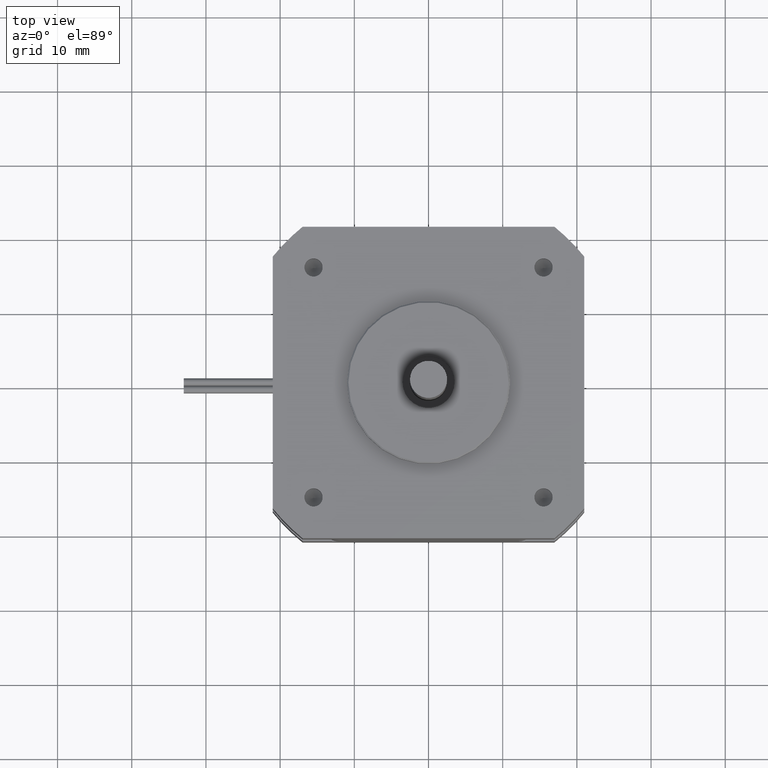
[diagram: clean part render]
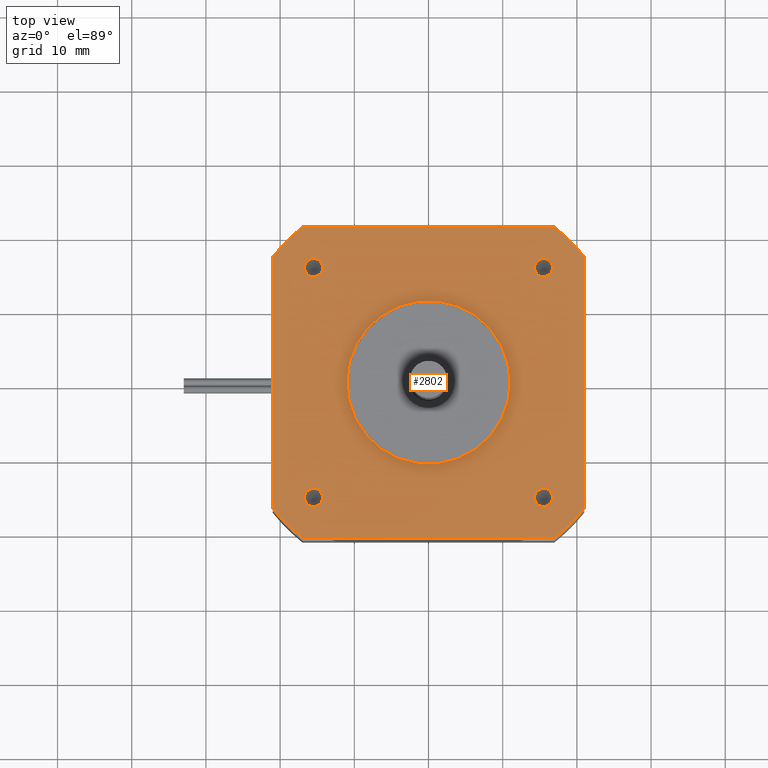
[diagram: same view with one face highlighted and labeled with its STEP entity id]
A machine part, top view. The second image highlights one B-rep face of the part: STEP entity #2802.
In plain terms, the highlighted planar face has unit normal (0, 0, 1).
Its self-contained STEP definition (entity closure, byte-faithful):
#47=FACE_BOUND('',#490,.T.);
#48=FACE_BOUND('',#491,.T.);
#49=FACE_BOUND('',#492,.T.);
#50=FACE_BOUND('',#493,.T.);
#51=FACE_BOUND('',#494,.T.);
#160=PLANE('',#3055);
#282=FACE_OUTER_BOUND('',#489,.T.);
#489=EDGE_LOOP('',(#1984,#1985,#1986,#1987,#1988,#1989,#1990,#1991));
#490=EDGE_LOOP('',(#1992));
#491=EDGE_LOOP('',(#1993));
#492=EDGE_LOOP('',(#1994));
#493=EDGE_LOOP('',(#1995));
#494=EDGE_LOOP('',(#1996));
#748=LINE('',#4442,#906);
#758=LINE('',#4470,#916);
#761=LINE('',#4525,#919);
#764=LINE('',#4533,#922);
#906=VECTOR('',#3492,10.);
#916=VECTOR('',#3520,10.);
#919=VECTOR('',#3593,10.);
#922=VECTOR('',#3602,10.);
#1032=CIRCLE('',#3019,11.);
#1038=CIRCLE('',#3032,1.2295);
#1040=CIRCLE('',#3036,1.2295);
#1042=CIRCLE('',#3040,1.2295);
#1044=CIRCLE('',#3044,1.2295);
#1045=CIRCLE('',#3046,27.);
#1046=CIRCLE('',#3048,27.);
#1047=CIRCLE('',#3051,27.);
#1048=CIRCLE('',#3054,27.);
#1236=VERTEX_POINT('',#4439);
#1237=VERTEX_POINT('',#4441);
#1245=VERTEX_POINT('',#4467);
#1246=VERTEX_POINT('',#4469);
#1249=VERTEX_POINT('',#4478);
#1255=VERTEX_POINT('',#4497);
#1257=VERTEX_POINT('',#4503);
#1259=VERTEX_POINT('',#4509);
#1261=VERTEX_POINT('',#4515);
#1262=VERTEX_POINT('',#4520);
#1263=VERTEX_POINT('',#4524);
#1264=VERTEX_POINT('',#4528);
#1265=VERTEX_POINT('',#4532);
#1494=EDGE_CURVE('',#1236,#1237,#748,.T.);
#1508=EDGE_CURVE('',#1245,#1246,#758,.T.);
#1512=EDGE_CURVE('',#1249,#1249,#1032,.T.);
#1518=EDGE_CURVE('',#1255,#1255,#1038,.T.);
#1520=EDGE_CURVE('',#1257,#1257,#1040,.T.);
#1522=EDGE_CURVE('',#1259,#1259,#1042,.T.);
#1524=EDGE_CURVE('',#1261,#1261,#1044,.T.);
#1525=EDGE_CURVE('',#1246,#1236,#1045,.T.);
#1526=EDGE_CURVE('',#1237,#1262,#1046,.T.);
#1528=EDGE_CURVE('',#1262,#1263,#761,.T.);
#1530=EDGE_CURVE('',#1263,#1264,#1047,.T.);
#1532=EDGE_CURVE('',#1264,#1265,#764,.T.);
#1534=EDGE_CURVE('',#1265,#1245,#1048,.T.);
#1984=ORIENTED_EDGE('',*,*,#1508,.F.);
#1985=ORIENTED_EDGE('',*,*,#1534,.F.);
#1986=ORIENTED_EDGE('',*,*,#1532,.F.);
#1987=ORIENTED_EDGE('',*,*,#1530,.F.);
#1988=ORIENTED_EDGE('',*,*,#1528,.F.);
#1989=ORIENTED_EDGE('',*,*,#1526,.F.);
#1990=ORIENTED_EDGE('',*,*,#1494,.F.);
#1991=ORIENTED_EDGE('',*,*,#1525,.F.);
#1992=ORIENTED_EDGE('',*,*,#1518,.T.);
#1993=ORIENTED_EDGE('',*,*,#1520,.T.);
#1994=ORIENTED_EDGE('',*,*,#1522,.T.);
#1995=ORIENTED_EDGE('',*,*,#1524,.T.);
#1996=ORIENTED_EDGE('',*,*,#1512,.T.);
#2802=ADVANCED_FACE('',(#282,#47,#48,#49,#50,#51),#160,.T.);
#3019=AXIS2_PLACEMENT_3D('',#4479,#3530,#3531);
#3032=AXIS2_PLACEMENT_3D('',#4498,#3556,#3557);
#3036=AXIS2_PLACEMENT_3D('',#4504,#3564,#3565);
#3040=AXIS2_PLACEMENT_3D('',#4510,#3572,#3573);
#3044=AXIS2_PLACEMENT_3D('',#4516,#3580,#3581);
#3046=AXIS2_PLACEMENT_3D('',#4518,#3584,#3585);
#3048=AXIS2_PLACEMENT_3D('',#4521,#3588,#3589);
#3051=AXIS2_PLACEMENT_3D('',#4529,#3597,#3598);
#3054=AXIS2_PLACEMENT_3D('',#4536,#3606,#3607);
#3055=AXIS2_PLACEMENT_3D('',#4537,#3608,#3609);
#3492=DIRECTION('',(6.322981388292E-16,-1.,0.));
#3520=DIRECTION('',(1.,8.93980215276496E-16,0.));
#3530=DIRECTION('center_axis',(0.,0.,-1.));
#3531=DIRECTION('ref_axis',(-1.,-7.63139177052848E-16,0.));
#3556=DIRECTION('center_axis',(0.,0.,-1.));
#3557=DIRECTION('ref_axis',(1.,7.63139177052848E-16,0.));
#3564=DIRECTION('center_axis',(0.,0.,-1.));
#3565=DIRECTION('ref_axis',(1.,7.63139177052848E-16,0.));
#3572=DIRECTION('center_axis',(0.,0.,-1.));
#3573=DIRECTION('ref_axis',(1.,7.63139177052848E-16,0.));
#3580=DIRECTION('center_axis',(0.,0.,-1.));
#3581=DIRECTION('ref_axis',(1.,7.63139177052848E-16,0.));
#3584=DIRECTION('center_axis',(0.,0.,-1.));
#3585=DIRECTION('ref_axis',(0.777777777777777,0.628539361054709,0.));
#3588=DIRECTION('center_axis',(0.,0.,-1.));
#3589=DIRECTION('ref_axis',(0.62853936105471,-0.777777777777777,0.));
#3593=DIRECTION('',(-1.,-1.02482125350014E-15,0.));
#3597=DIRECTION('center_axis',(0.,0.,-1.));
#3598=DIRECTION('ref_axis',(-0.777777777777778,-0.628539361054709,0.));
#3602=DIRECTION('',(-6.322981388292E-16,1.,0.));
#3606=DIRECTION('center_axis',(0.,0.,-1.));
#3607=DIRECTION('ref_axis',(-0.62853936105471,0.777777777777777,0.));
#3608=DIRECTION('center_axis',(0.,0.,1.));
#3609=DIRECTION('ref_axis',(1.,7.63139177052848E-16,0.));
#4439=CARTESIAN_POINT('',(21.,16.9705627484771,16.35));
#4441=CARTESIAN_POINT('',(21.,-16.9705627484771,16.35));
#4442=CARTESIAN_POINT('',(21.,-16.9705627484771,16.35));
#4467=CARTESIAN_POINT('',(-16.9705627484772,21.,16.35));
#4469=CARTESIAN_POINT('',(16.9705627484771,21.,16.35));
#4470=CARTESIAN_POINT('',(16.9705627484771,21.,16.35));
#4478=CARTESIAN_POINT('',(11.,6.06807659633533E-15,16.35));
#4479=CARTESIAN_POINT('Origin',(4.44089209850063E-15,-3.67356583030809E-15,
16.35));
#4497=CARTESIAN_POINT('',(-16.7295,-15.5,16.35));
#4498=CARTESIAN_POINT('Origin',(-15.5,-15.5,16.35));
#4503=CARTESIAN_POINT('',(14.2705,-15.5,16.35));
#4504=CARTESIAN_POINT('Origin',(15.5,-15.5,16.35));
#4509=CARTESIAN_POINT('',(-16.7295,15.5,16.35));
#4510=CARTESIAN_POINT('Origin',(-15.5,15.5,16.35));
#4515=CARTESIAN_POINT('',(14.2705,15.5,16.35));
#4516=CARTESIAN_POINT('Origin',(15.5,15.5,16.35));
#4518=CARTESIAN_POINT('Origin',(4.44089209850063E-15,-3.67356583030809E-15,
16.35));
#4520=CARTESIAN_POINT('',(16.9705627484772,-21.,16.35));
#4521=CARTESIAN_POINT('Origin',(4.44089209850063E-15,-3.67356583030809E-15,
16.35));
#4524=CARTESIAN_POINT('',(-16.9705627484771,-21.,16.35));
#4525=CARTESIAN_POINT('',(-16.9705627484771,-21.,16.35));
#4528=CARTESIAN_POINT('',(-21.,-16.9705627484772,16.35));
#4529=CARTESIAN_POINT('Origin',(4.44089209850063E-15,-3.67356583030809E-15,
16.35));
#4532=CARTESIAN_POINT('',(-21.,16.9705627484771,16.35));
#4533=CARTESIAN_POINT('',(-21.,16.9705627484771,16.35));
#4536=CARTESIAN_POINT('Origin',(4.44089209850063E-15,-3.67356583030809E-15,
16.35));
#4537=CARTESIAN_POINT('Origin',(4.84157506310317E-15,-3.42896756432617E-16,
16.35));